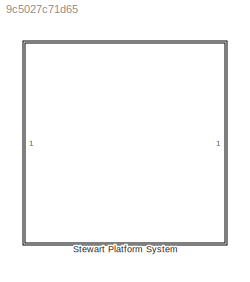
MODEL slx_9c5027c71d65
KIND model
CONFIG AbsTol = auto
CONFIG EnableMultiTasking = on
CONFIG FixedStep = auto
CONFIG MaxStep = 0.2
CONFIG MinStep = auto
CONFIG RelTol = 1e-3
CONFIG SampleTimeConstraint = Unconstrained
CONFIG Solver = ode45
CONFIG SolverName = ode45
CONFIG StartTime = 0.0
CONFIG StopTime = 40
WORKSPACE source: mxarray member
WORKSPACE g_density = 5
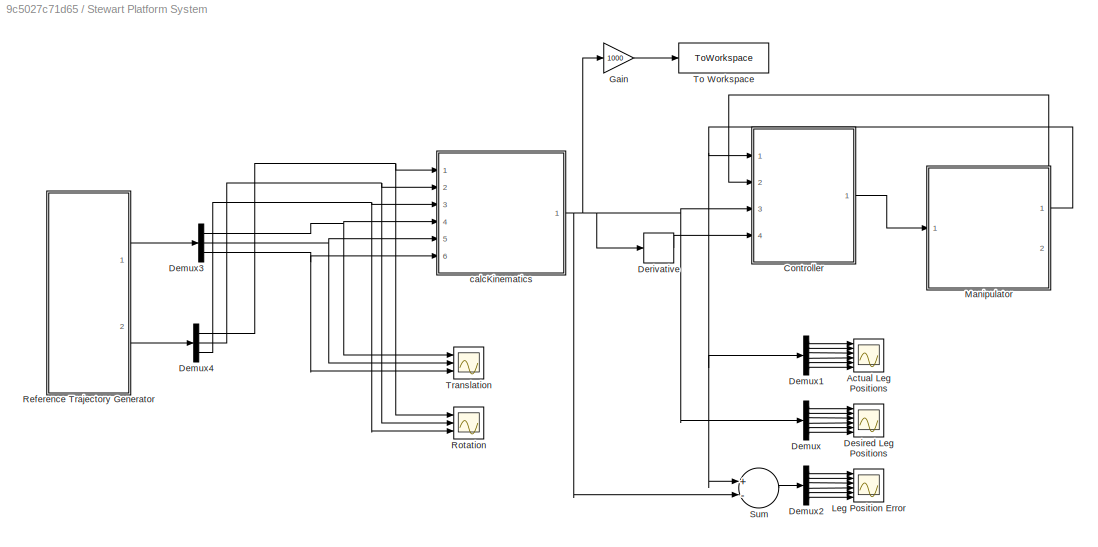
BLOCK [SubSystem] Stewart Platform System
  Ports = []
  RequestExecContextInheritance = off
BLOCK [Scope] Stewart Platform System/Actual Leg Positions
  Floating = off
  NumInputPorts = 6
  Ports = [6]
  ScopeSpecificationString = Simulink.scopes.TimeScopeBlockCfg('CurrentConfiguration', extmgr.ConfigurationSet(extmgr.Configuration('Core','General UI',true),extmgr.Configuration('Core','Source UI',true),extmgr.Configuration('Sources','WiredSimulink',true,'DataLoggingVariableName','ScopeData5','DataLoggingSaveFormat','StructureWithTime','DataLoggingLimitDataPoints',true,'DataLoggingDecimation','1','DataLoggingDecimateData',tr...<+5241ch>
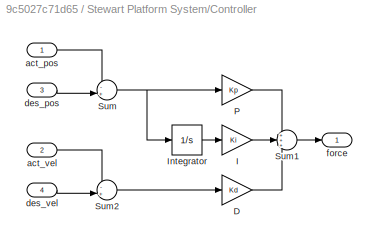
BLOCK [SubSystem] Stewart Platform System/Controller
  Ports = [4, 1]
  RequestExecContextInheritance = off
BLOCK [Gain] Stewart Platform System/Controller/D
  Gain = Kd
BLOCK [Gain] Stewart Platform System/Controller/I
  Gain = Ki
BLOCK [Integrator] Stewart Platform System/Controller/Integrator
  Ports = [1, 1]
  ZeroCross = off
BLOCK [Gain] Stewart Platform System/Controller/P
  Gain = Kp
BLOCK [Sum] Stewart Platform System/Controller/Sum
  IconShape = round
  Inputs = -+|
  Ports = [2, 1]
BLOCK [Sum] Stewart Platform System/Controller/Sum1
  IconShape = round
  Inputs = +++
  Ports = [3, 1]
BLOCK [Sum] Stewart Platform System/Controller/Sum2
  IconShape = round
  Inputs = -+|
  Ports = [2, 1]
BLOCK [Inport] Stewart Platform System/Controller/act_pos
  IconDisplay = Port number
BLOCK [Inport] Stewart Platform System/Controller/act_vel
  IconDisplay = Port number
  Port = 2
BLOCK [Inport] Stewart Platform System/Controller/des_pos
  IconDisplay = Port number
  Port = 3
BLOCK [Inport] Stewart Platform System/Controller/des_vel
  IconDisplay = Port number
  Port = 4
BLOCK [Outport] Stewart Platform System/Controller/force
  IconDisplay = Port number
  VectorParamsAs1DForOutWhenUnconnected = off
BLOCK [Demux] Stewart Platform System/Demux
  DisplayOption = bar
  Outputs = 6
  Ports = [1, 6]
BLOCK [Demux] Stewart Platform System/Demux1
  DisplayOption = bar
  Outputs = 6
  Ports = [1, 6]
BLOCK [Demux] Stewart Platform System/Demux2
  DisplayOption = bar
  Outputs = 6
  Ports = [1, 6]
BLOCK [Demux] Stewart Platform System/Demux3
  DisplayOption = bar
  Outputs = 3
  Ports = [1, 3]
BLOCK [Demux] Stewart Platform System/Demux4
  DisplayOption = bar
  Outputs = 3
  Ports = [1, 3]
BLOCK [Derivative] Stewart Platform System/Derivative
BLOCK [Scope] Stewart Platform System/Desired Leg Positions
  Floating = off
  NumInputPorts = 6
  Ports = [6]
  ScopeSpecificationString = Simulink.scopes.TimeScopeBlockCfg('CurrentConfiguration', extmgr.ConfigurationSet(extmgr.Configuration('Core','General UI',true),extmgr.Configuration('Core','Source UI',true),extmgr.Configuration('Sources','WiredSimulink',true,'DataLoggingVariableName','ScopeData4','DataLoggingSaveFormat','StructureWithTime','DataLoggingLimitDataPoints',true,'DataLoggingDecimation','1','DataLoggingDecimateData',tr...<+5195ch>
BLOCK [Gain] Stewart Platform System/Gain
  Gain = 1000
  OutDataTypeStr = Inherit: Inherit via internal rule
  ParamDataTypeStr = Inherit: Inherit via internal rule
  SaturateOnIntegerOverflow = off
BLOCK [Scope] Stewart Platform System/Leg Position Error
  Floating = off
  NumInputPorts = 6
  Ports = [6]
  ScopeSpecificationString = Simulink.scopes.TimeScopeBlockCfg('CurrentConfiguration', extmgr.ConfigurationSet(extmgr.Configuration('Core','General UI',true),extmgr.Configuration('Core','Source UI',true),extmgr.Configuration('Sources','WiredSimulink',true,'DataLoggingVariableName','ScopeData6','DataLoggingSaveFormat','StructureWithTime','DataLoggingLimitDataPoints',true,'DataLoggingDecimation','1','DataLoggingDecimateData',tr...<+5216ch>
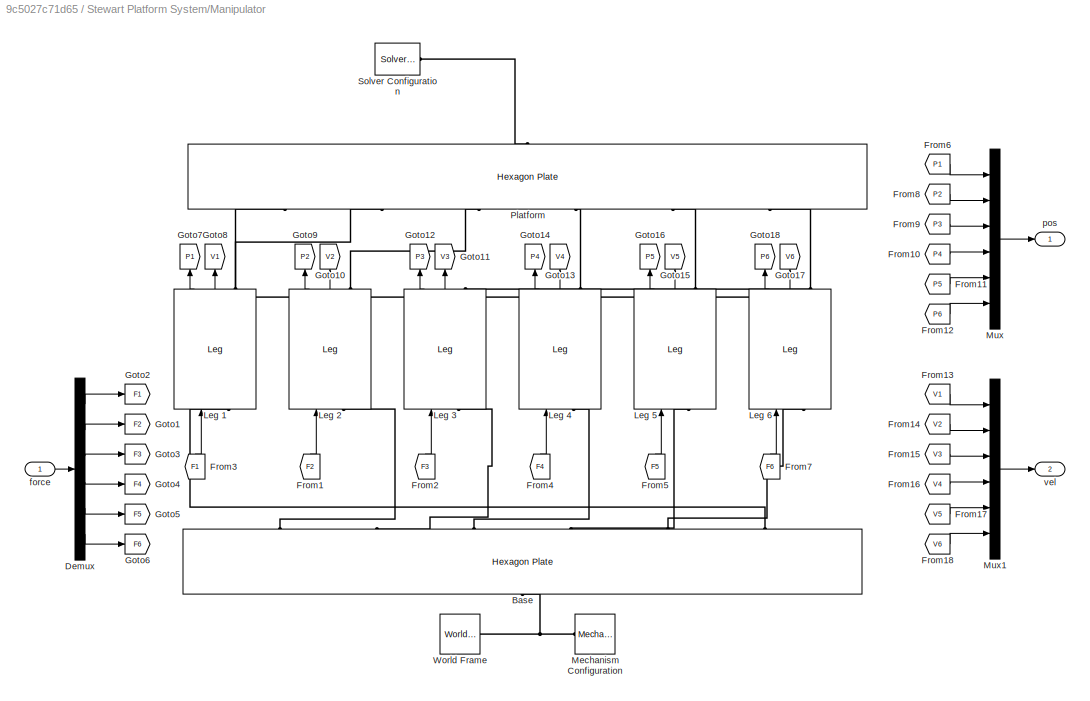
BLOCK [SubSystem] Stewart Platform System/Manipulator
  Ports = [1, 2]
  RequestExecContextInheritance = off
BLOCK [Reference] Stewart Platform System/Manipulator/Base  REF=sm_stewart_platform_lib/Hexagon
Plate
  Ports = [0, 0, 0, 0, 0, 1, 6]
  SourceBlock = sm_stewart_platform_lib/Hexagon\nPlate
  SourceProductBaseCode = MS
  SourceProductName = Simscape Multibody
  SourceType = Hexagon Plate
BLOCK [Demux] Stewart Platform System/Manipulator/Demux
  DisplayOption = bar
  Outputs = 6
  Ports = [1, 6]
BLOCK [From] Stewart Platform System/Manipulator/From1
  CloseFcn = tagdialog Close
  GotoTag = F2
BLOCK [From] Stewart Platform System/Manipulator/From10
  CloseFcn = tagdialog Close
  GotoTag = P4
BLOCK [From] Stewart Platform System/Manipulator/From11
  CloseFcn = tagdialog Close
  GotoTag = P5
BLOCK [From] Stewart Platform System/Manipulator/From12
  CloseFcn = tagdialog Close
  GotoTag = P6
BLOCK [From] Stewart Platform System/Manipulator/From13
  CloseFcn = tagdialog Close
  GotoTag = V1
BLOCK [From] Stewart Platform System/Manipulator/From14
  CloseFcn = tagdialog Close
  GotoTag = V2
BLOCK [From] Stewart Platform System/Manipulator/From15
  CloseFcn = tagdialog Close
  GotoTag = V3
BLOCK [From] Stewart Platform System/Manipulator/From16
  CloseFcn = tagdialog Close
  GotoTag = V4
BLOCK [From] Stewart Platform System/Manipulator/From17
  CloseFcn = tagdialog Close
  GotoTag = V5
BLOCK [From] Stewart Platform System/Manipulator/From18
  CloseFcn = tagdialog Close
  GotoTag = V6
BLOCK [From] Stewart Platform System/Manipulator/From2
  CloseFcn = tagdialog Close
  GotoTag = F3
BLOCK [From] Stewart Platform System/Manipulator/From3
  CloseFcn = tagdialog Close
  GotoTag = F1
BLOCK [From] Stewart Platform System/Manipulator/From4
  CloseFcn = tagdialog Close
  GotoTag = F4
BLOCK [From] Stewart Platform System/Manipulator/From5
  CloseFcn = tagdialog Close
  GotoTag = F5
BLOCK [From] Stewart Platform System/Manipulator/From6
  CloseFcn = tagdialog Close
  GotoTag = P1
BLOCK [From] Stewart Platform System/Manipulator/From7
  CloseFcn = tagdialog Close
  GotoTag = F6
BLOCK [From] Stewart Platform System/Manipulator/From8
  CloseFcn = tagdialog Close
  GotoTag = P2
BLOCK [From] Stewart Platform System/Manipulator/From9
  CloseFcn = tagdialog Close
  GotoTag = P3
BLOCK [Goto] Stewart Platform System/Manipulator/Goto1
  GotoTag = F2
BLOCK [Goto] Stewart Platform System/Manipulator/Goto10
  GotoTag = V2
BLOCK [Goto] Stewart Platform System/Manipulator/Goto11
  GotoTag = V3
BLOCK [Goto] Stewart Platform System/Manipulator/Goto12
  GotoTag = P3
BLOCK [Goto] Stewart Platform System/Manipulator/Goto13
  GotoTag = V4
BLOCK [Goto] Stewart Platform System/Manipulator/Goto14
  GotoTag = P4
BLOCK [Goto] Stewart Platform System/Manipulator/Goto15
  GotoTag = V5
BLOCK [Goto] Stewart Platform System/Manipulator/Goto16
  GotoTag = P5
BLOCK [Goto] Stewart Platform System/Manipulator/Goto17
  GotoTag = V6
BLOCK [Goto] Stewart Platform System/Manipulator/Goto18
  GotoTag = P6
BLOCK [Goto] Stewart Platform System/Manipulator/Goto2
  GotoTag = F1
BLOCK [Goto] Stewart Platform System/Manipulator/Goto3
  GotoTag = F3
BLOCK [Goto] Stewart Platform System/Manipulator/Goto4
  GotoTag = F4
BLOCK [Goto] Stewart Platform System/Manipulator/Goto5
  GotoTag = F5
BLOCK [Goto] Stewart Platform System/Manipulator/Goto6
  GotoTag = F6
BLOCK [Goto] Stewart Platform System/Manipulator/Goto7
  GotoTag = P1
BLOCK [Goto] Stewart Platform System/Manipulator/Goto8
  GotoTag = V1
BLOCK [Goto] Stewart Platform System/Manipulator/Goto9
  GotoTag = P2
BLOCK [Reference] Stewart Platform System/Manipulator/Leg 1  REF=sm_stewart_platform_lib/Leg
  Ports = [1, 2, 0, 0, 0, 1, 1]
  SourceBlock = sm_stewart_platform_lib/Leg
  SourceProductBaseCode = MS
  SourceProductName = Simscape Multibody
  SourceType = Leg
BLOCK [Reference] Stewart Platform System/Manipulator/Leg 2  REF=sm_stewart_platform_lib/Leg
  Ports = [1, 2, 0, 0, 0, 1, 1]
  SourceBlock = sm_stewart_platform_lib/Leg
  SourceProductBaseCode = MS
  SourceProductName = Simscape Multibody
  SourceType = Leg
BLOCK [Reference] Stewart Platform System/Manipulator/Leg 3  REF=sm_stewart_platform_lib/Leg
  Ports = [1, 2, 0, 0, 0, 1, 1]
  SourceBlock = sm_stewart_platform_lib/Leg
  SourceProductBaseCode = MS
  SourceProductName = Simscape Multibody
  SourceType = Leg
BLOCK [Reference] Stewart Platform System/Manipulator/Leg 4  REF=sm_stewart_platform_lib/Leg
  Ports = [1, 2, 0, 0, 0, 1, 1]
  SourceBlock = sm_stewart_platform_lib/Leg
  SourceProductBaseCode = MS
  SourceProductName = Simscape Multibody
  SourceType = Leg
BLOCK [Reference] Stewart Platform System/Manipulator/Leg 5  REF=sm_stewart_platform_lib/Leg
  Ports = [1, 2, 0, 0, 0, 1, 1]
  SourceBlock = sm_stewart_platform_lib/Leg
  SourceProductBaseCode = MS
  SourceProductName = Simscape Multibody
  SourceType = Leg
BLOCK [Reference] Stewart Platform System/Manipulator/Leg 6  REF=sm_stewart_platform_lib/Leg
  Ports = [1, 2, 0, 0, 0, 1, 1]
  SourceBlock = sm_stewart_platform_lib/Leg
  SourceProductBaseCode = MS
  SourceProductName = Simscape Multibody
  SourceType = Leg
BLOCK [Reference] Stewart Platform System/Manipulator/Mechanism Configuration  REF=sm_lib/Utilities/Mechanism
Configuration
  Ports = [0, 0, 0, 0, 0, 0, 1]
  SourceBlock = sm_lib/Utilities/Mechanism\nConfiguration
  SourceProductBaseCode = MS
  SourceProductName = Simscape Multibody
  SourceType = Mechanism\nConfiguration
BLOCK [Mux] Stewart Platform System/Manipulator/Mux
  DisplayOption = bar
  Inputs = 6
  Ports = [6, 1]
BLOCK [Mux] Stewart Platform System/Manipulator/Mux1
  DisplayOption = bar
  Inputs = 6
  Ports = [6, 1]
BLOCK [Reference] Stewart Platform System/Manipulator/Platform  REF=sm_stewart_platform_lib/Hexagon
Plate
  Ports = [0, 0, 0, 0, 0, 1, 6]
  SourceBlock = sm_stewart_platform_lib/Hexagon\nPlate
  SourceProductBaseCode = MS
  SourceProductName = Simscape Multibody
  SourceType = Hexagon Plate
BLOCK [Reference] Stewart Platform System/Manipulator/Solver Configuration  REF=nesl_utility/Solver
Configuration
  Ports = [0, 0, 0, 0, 0, 0, 1]
  SourceBlock = nesl_utility/Solver\nConfiguration
  SourceProductBaseCode = SS
  SourceProductName = Simscape
  SourceType = Solver\nConfiguration
BLOCK [Reference] Stewart Platform System/Manipulator/World Frame  REF=sm_lib/Frames and
Transforms/World Frame
  Ports = [0, 0, 0, 0, 0, 0, 1]
  SourceBlock = sm_lib/Frames and\nTransforms/World Frame
  SourceProductBaseCode = MS
  SourceProductName = Simscape Multibody
  SourceType = World Frame
BLOCK [Inport] Stewart Platform System/Manipulator/force
  IconDisplay = Port number
BLOCK [Outport] Stewart Platform System/Manipulator/pos
  IconDisplay = Port number
  VectorParamsAs1DForOutWhenUnconnected = off
BLOCK [Outport] Stewart Platform System/Manipulator/vel
  IconDisplay = Port number
  Port = 2
  VectorParamsAs1DForOutWhenUnconnected = off
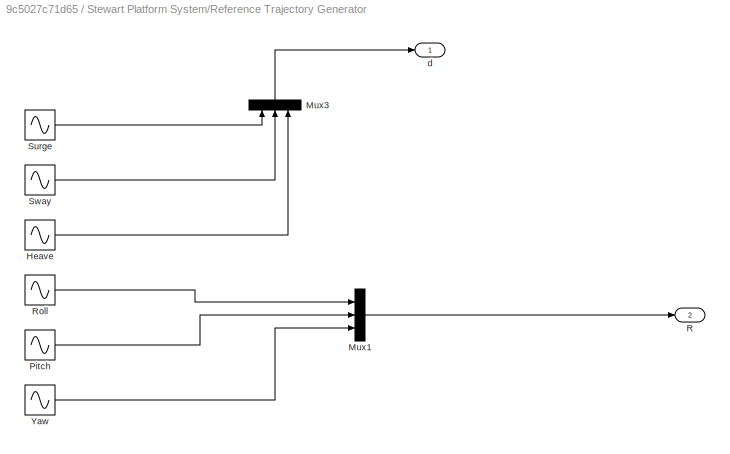
BLOCK [SubSystem] Stewart Platform System/Reference Trajectory Generator
  Ports = [0, 2]
  RequestExecContextInheritance = off
BLOCK [Sin] Stewart Platform System/Reference Trajectory Generator/Heave
  Amplitude = 0
  Frequency = pi/10
  Ports = [0, 1]
  SampleTime = 0.1
BLOCK [Mux] Stewart Platform System/Reference Trajectory Generator/Mux1
  DisplayOption = bar
  Inputs = 3
  Ports = [3, 1]
BLOCK [Mux] Stewart Platform System/Reference Trajectory Generator/Mux3
  DisplayOption = bar
  Inputs = 3
  Ports = [3, 1]
BLOCK [Sin] Stewart Platform System/Reference Trajectory Generator/Pitch
  Amplitude = pi/180*2
  Frequency = pi * 3 / 10
  Phase = -pi/2
  Ports = [0, 1]
  SampleTime = 0.01
BLOCK [Outport] Stewart Platform System/Reference Trajectory Generator/R
  IconDisplay = Port number
  Port = 2
  VectorParamsAs1DForOutWhenUnconnected = off
BLOCK [Sin] Stewart Platform System/Reference Trajectory Generator/Roll
  Amplitude = pi/180*2
  Frequency = pi * 3 / 10
  Ports = [0, 1]
  SampleTime = 0.01
BLOCK [Sin] Stewart Platform System/Reference Trajectory Generator/Surge
  Amplitude = 0
  Frequency = pi/10
  Ports = [0, 1]
  SampleTime = 0.1
BLOCK [Sin] Stewart Platform System/Reference Trajectory Generator/Sway
  Amplitude = 0
  Frequency = pi/10
  Phase = -pi/2
  Ports = [0, 1]
  SampleTime = 0.1
BLOCK [Sin] Stewart Platform System/Reference Trajectory Generator/Yaw
  Amplitude = (pi/180)*2
  Frequency = pi * 3 / 10
  Ports = [0, 1]
  SampleTime = 0.01
BLOCK [Outport] Stewart Platform System/Reference Trajectory Generator/d
  IconDisplay = Port number
  VectorParamsAs1DForOutWhenUnconnected = off
BLOCK [Scope] Stewart Platform System/Rotation
  Floating = off
  NumInputPorts = 3
  Ports = [3]
  ScopeSpecificationString = Simulink.scopes.TimeScopeBlockCfg('CurrentConfiguration', extmgr.ConfigurationSet(extmgr.Configuration('Core','General UI',true),extmgr.Configuration('Core','Source UI',true),extmgr.Configuration('Sources','WiredSimulink',true,'DataLoggingVariableName','ScopeData2'),extmgr.Configuration('Visuals','Time Domain',true,'SerializedDisplays',{struct('MinYLimReal','-0.04363','MaxYLimReal','0.04363','YLab...<+2808ch>
BLOCK [Sum] Stewart Platform System/Sum
  InputSameDT = off
  Inputs = +-
  OutDataTypeStr = Inherit: Inherit via internal rule
  Ports = [2, 1]
  SaturateOnIntegerOverflow = off
BLOCK [ToWorkspace] Stewart Platform System/To Workspace
  FixptAsFi = on
  MaxDataPoints = inf
  Ports = [1]
  SampleTime = -1
  SaveFormat = Timeseries
  VariableName = out
BLOCK [Scope] Stewart Platform System/Translation
  Floating = off
  NumInputPorts = 3
  Ports = [3]
  ScopeSpecificationString = Simulink.scopes.TimeScopeBlockCfg('CurrentConfiguration', extmgr.ConfigurationSet(extmgr.Configuration('Core','General UI',true),extmgr.Configuration('Core','Source UI',true),extmgr.Configuration('Sources','WiredSimulink',true,'DataLoggingVariableName','ScopeData1'),extmgr.Configuration('Visuals','Time Domain',true,'SerializedDisplays',{struct('MinYLimReal','-1.00000','MaxYLimReal','1.00000','YLab...<+2817ch>
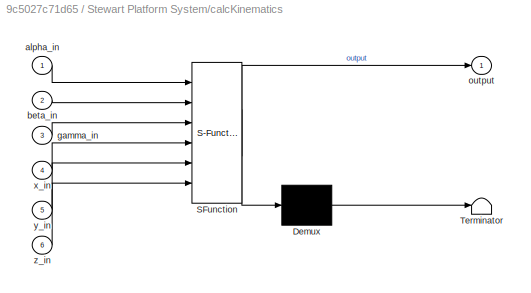
BLOCK [SubSystem] Stewart Platform System/calcKinematics
  ErrorFcn = Stateflow.Translate.translate
  PermitHierarchicalResolution = ExplicitOnly
  Ports = [6, 1]
  RequestExecContextInheritance = off
  SFBlockType = MATLAB Function
  TreatAsAtomicUnit = on
BLOCK [Demux] Stewart Platform System/calcKinematics/ Demux 
  Outputs = 1
  Ports = [1, 1]
BLOCK [S-Function] Stewart Platform System/calcKinematics/ SFunction 
  EnableBusSupport = on
  FunctionName = sf_sfun
  PortCounts = [6 2]
  Ports = [6, 2]
  SFcnIsStateOwnerBlock = off
  SFunctionDeploymentMode = off
  Tag = Stateflow S-Function 2
BLOCK [Terminator] Stewart Platform System/calcKinematics/ Terminator 
BLOCK [Inport] Stewart Platform System/calcKinematics/alpha_in
  IconDisplay = Port number
BLOCK [Inport] Stewart Platform System/calcKinematics/beta_in
  IconDisplay = Port number
  Port = 2
BLOCK [Inport] Stewart Platform System/calcKinematics/gamma_in
  IconDisplay = Port number
  Port = 3
BLOCK [Outport] Stewart Platform System/calcKinematics/output
  IconDisplay = Port number
BLOCK [Inport] Stewart Platform System/calcKinematics/x_in
  IconDisplay = Port number
  Port = 4
BLOCK [Inport] Stewart Platform System/calcKinematics/y_in
  IconDisplay = Port number
  Port = 5
BLOCK [Inport] Stewart Platform System/calcKinematics/z_in
  IconDisplay = Port number
  Port = 6
LINE Stewart Platform System/Controller/D:1 -> Stewart Platform System/Controller/Sum1:3
LINE Stewart Platform System/Controller/I:1 -> Stewart Platform System/Controller/Sum1:2
LINE Stewart Platform System/Controller/Integrator:1 -> Stewart Platform System/Controller/I:1
LINE Stewart Platform System/Controller/P:1 -> Stewart Platform System/Controller/Sum1:1
LINE Stewart Platform System/Controller/Sum1:1 -> Stewart Platform System/Controller/force:1
LINE Stewart Platform System/Controller/Sum2:1 -> Stewart Platform System/Controller/D:1
NET Stewart Platform System/Controller/Sum:1 -> Stewart Platform System/Controller/Integrator:1, Stewart Platform System/Controller/P:1
LINE Stewart Platform System/Controller/act_pos:1 -> Stewart Platform System/Controller/Sum:1
LINE Stewart Platform System/Controller/act_vel:1 -> Stewart Platform System/Controller/Sum2:1
LINE Stewart Platform System/Controller/des_pos:1 -> Stewart Platform System/Controller/Sum:2
LINE Stewart Platform System/Controller/des_vel:1 -> Stewart Platform System/Controller/Sum2:2
LINE Stewart Platform System/Controller:1 -> Stewart Platform System/Manipulator:1
LINE Stewart Platform System/Demux1:1 -> Stewart Platform System/Actual Leg Positions:1
LINE Stewart Platform System/Demux1:2 -> Stewart Platform System/Actual Leg Positions:2
LINE Stewart Platform System/Demux1:3 -> Stewart Platform System/Actual Leg Positions:3
LINE Stewart Platform System/Demux1:4 -> Stewart Platform System/Actual Leg Positions:4
LINE Stewart Platform System/Demux1:5 -> Stewart Platform System/Actual Leg Positions:5
LINE Stewart Platform System/Demux1:6 -> Stewart Platform System/Actual Leg Positions:6
LINE Stewart Platform System/Demux2:1 -> Stewart Platform System/Leg Position Error:1
LINE Stewart Platform System/Demux2:2 -> Stewart Platform System/Leg Position Error:2
LINE Stewart Platform System/Demux2:3 -> Stewart Platform System/Leg Position Error:3
LINE Stewart Platform System/Demux2:4 -> Stewart Platform System/Leg Position Error:4
LINE Stewart Platform System/Demux2:5 -> Stewart Platform System/Leg Position Error:5
LINE Stewart Platform System/Demux2:6 -> Stewart Platform System/Leg Position Error:6
NET Stewart Platform System/Demux3:1 -> Stewart Platform System/Translation:1, Stewart Platform System/calcKinematics:4
NET Stewart Platform System/Demux3:2 -> Stewart Platform System/Translation:2, Stewart Platform System/calcKinematics:5
NET Stewart Platform System/Demux3:3 -> Stewart Platform System/Translation:3, Stewart Platform System/calcKinematics:6
NET Stewart Platform System/Demux4:1 -> Stewart Platform System/Rotation:1, Stewart Platform System/calcKinematics:1
NET Stewart Platform System/Demux4:2 -> Stewart Platform System/Rotation:2, Stewart Platform System/calcKinematics:2
NET Stewart Platform System/Demux4:3 -> Stewart Platform System/Rotation:3, Stewart Platform System/calcKinematics:3
LINE Stewart Platform System/Demux:1 -> Stewart Platform System/Desired Leg Positions:1
LINE Stewart Platform System/Demux:2 -> Stewart Platform System/Desired Leg Positions:2
LINE Stewart Platform System/Demux:3 -> Stewart Platform System/Desired Leg Positions:3
LINE Stewart Platform System/Demux:4 -> Stewart Platform System/Desired Leg Positions:4
LINE Stewart Platform System/Demux:5 -> Stewart Platform System/Desired Leg Positions:5
LINE Stewart Platform System/Demux:6 -> Stewart Platform System/Desired Leg Positions:6
LINE Stewart Platform System/Derivative:1 -> Stewart Platform System/Controller:4
LINE Stewart Platform System/Gain:1 -> Stewart Platform System/To Workspace:1
LINE Stewart Platform System/Manipulator/Demux:1 -> Stewart Platform System/Manipulator/Goto2:1
LINE Stewart Platform System/Manipulator/Demux:2 -> Stewart Platform System/Manipulator/Goto1:1
LINE Stewart Platform System/Manipulator/Demux:3 -> Stewart Platform System/Manipulator/Goto3:1
LINE Stewart Platform System/Manipulator/Demux:4 -> Stewart Platform System/Manipulator/Goto4:1
LINE Stewart Platform System/Manipulator/Demux:5 -> Stewart Platform System/Manipulator/Goto5:1
LINE Stewart Platform System/Manipulator/Demux:6 -> Stewart Platform System/Manipulator/Goto6:1
LINE Stewart Platform System/Manipulator/From10:1 -> Stewart Platform System/Manipulator/Mux:4
LINE Stewart Platform System/Manipulator/From11:1 -> Stewart Platform System/Manipulator/Mux:5
LINE Stewart Platform System/Manipulator/From12:1 -> Stewart Platform System/Manipulator/Mux:6
LINE Stewart Platform System/Manipulator/From13:1 -> Stewart Platform System/Manipulator/Mux1:1
LINE Stewart Platform System/Manipulator/From14:1 -> Stewart Platform System/Manipulator/Mux1:2
LINE Stewart Platform System/Manipulator/From15:1 -> Stewart Platform System/Manipulator/Mux1:3
LINE Stewart Platform System/Manipulator/From16:1 -> Stewart Platform System/Manipulator/Mux1:4
LINE Stewart Platform System/Manipulator/From17:1 -> Stewart Platform System/Manipulator/Mux1:5
LINE Stewart Platform System/Manipulator/From18:1 -> Stewart Platform System/Manipulator/Mux1:6
LINE Stewart Platform System/Manipulator/From1:1 -> Stewart Platform System/Manipulator/Leg 2:1
LINE Stewart Platform System/Manipulator/From2:1 -> Stewart Platform System/Manipulator/Leg 3:1
LINE Stewart Platform System/Manipulator/From3:1 -> Stewart Platform System/Manipulator/Leg 1:1
LINE Stewart Platform System/Manipulator/From4:1 -> Stewart Platform System/Manipulator/Leg 4:1
LINE Stewart Platform System/Manipulator/From5:1 -> Stewart Platform System/Manipulator/Leg 5:1
LINE Stewart Platform System/Manipulator/From6:1 -> Stewart Platform System/Manipulator/Mux:1
LINE Stewart Platform System/Manipulator/From7:1 -> Stewart Platform System/Manipulator/Leg 6:1
LINE Stewart Platform System/Manipulator/From8:1 -> Stewart Platform System/Manipulator/Mux:2
LINE Stewart Platform System/Manipulator/From9:1 -> Stewart Platform System/Manipulator/Mux:3
LINE Stewart Platform System/Manipulator/Leg 1:1 -> Stewart Platform System/Manipulator/Goto7:1
LINE Stewart Platform System/Manipulator/Leg 1:2 -> Stewart Platform System/Manipulator/Goto8:1
LINE Stewart Platform System/Manipulator/Leg 2:1 -> Stewart Platform System/Manipulator/Goto9:1
LINE Stewart Platform System/Manipulator/Leg 2:2 -> Stewart Platform System/Manipulator/Goto10:1
LINE Stewart Platform System/Manipulator/Leg 3:1 -> Stewart Platform System/Manipulator/Goto12:1
LINE Stewart Platform System/Manipulator/Leg 3:2 -> Stewart Platform System/Manipulator/Goto11:1
LINE Stewart Platform System/Manipulator/Leg 4:1 -> Stewart Platform System/Manipulator/Goto14:1
LINE Stewart Platform System/Manipulator/Leg 4:2 -> Stewart Platform System/Manipulator/Goto13:1
LINE Stewart Platform System/Manipulator/Leg 5:1 -> Stewart Platform System/Manipulator/Goto16:1
LINE Stewart Platform System/Manipulator/Leg 5:2 -> Stewart Platform System/Manipulator/Goto15:1
LINE Stewart Platform System/Manipulator/Leg 6:1 -> Stewart Platform System/Manipulator/Goto18:1
LINE Stewart Platform System/Manipulator/Leg 6:2 -> Stewart Platform System/Manipulator/Goto17:1
LINE Stewart Platform System/Manipulator/Mux1:1 -> Stewart Platform System/Manipulator/vel:1
LINE Stewart Platform System/Manipulator/Mux:1 -> Stewart Platform System/Manipulator/pos:1
LINE Stewart Platform System/Manipulator/force:1 -> Stewart Platform System/Manipulator/Demux:1
NET Stewart Platform System/Manipulator:1 -> Stewart Platform System/Controller:1, Stewart Platform System/Demux1:1, Stewart Platform System/Sum:1
LINE Stewart Platform System/Manipulator:2 -> Stewart Platform System/Controller:2
LINE Stewart Platform System/Reference Trajectory Generator/Heave:1 -> Stewart Platform System/Reference Trajectory Generator/Mux3:3
LINE Stewart Platform System/Reference Trajectory Generator/Mux1:1 -> Stewart Platform System/Reference Trajectory Generator/R:1
LINE Stewart Platform System/Reference Trajectory Generator/Mux3:1 -> Stewart Platform System/Reference Trajectory Generator/d:1
LINE Stewart Platform System/Reference Trajectory Generator/Pitch:1 -> Stewart Platform System/Reference Trajectory Generator/Mux1:2
LINE Stewart Platform System/Reference Trajectory Generator/Roll:1 -> Stewart Platform System/Reference Trajectory Generator/Mux1:1
LINE Stewart Platform System/Reference Trajectory Generator/Surge:1 -> Stewart Platform System/Reference Trajectory Generator/Mux3:1
LINE Stewart Platform System/Reference Trajectory Generator/Sway:1 -> Stewart Platform System/Reference Trajectory Generator/Mux3:2
LINE Stewart Platform System/Reference Trajectory Generator/Yaw:1 -> Stewart Platform System/Reference Trajectory Generator/Mux1:3
LINE Stewart Platform System/Reference Trajectory Generator:1 -> Stewart Platform System/Demux3:1
LINE Stewart Platform System/Reference Trajectory Generator:2 -> Stewart Platform System/Demux4:1
LINE Stewart Platform System/Sum:1 -> Stewart Platform System/Demux2:1
NET Stewart Platform System/calcKinematics:1 -> Stewart Platform System/Controller:3, Stewart Platform System/Demux:1, Stewart Platform System/Derivative:1, Stewart Platform System/Gain:1, Stewart Platform System/Sum:2
PNET net1: Stewart Platform System/Manipulator/Base:LConn1 -- Stewart Platform System/Manipulator/Mechanism Configuration:RConn1 -- Stewart Platform System/Manipulator/World Frame:RConn1
PLINE Stewart Platform System/Manipulator/Base:RConn1 -- Stewart Platform System/Manipulator/Leg 2:LConn1
PLINE Stewart Platform System/Manipulator/Base:RConn2 -- Stewart Platform System/Manipulator/Leg 3:LConn1
PLINE Stewart Platform System/Manipulator/Base:RConn3 -- Stewart Platform System/Manipulator/Leg 4:LConn1
PLINE Stewart Platform System/Manipulator/Base:RConn4 -- Stewart Platform System/Manipulator/Leg 5:LConn1
PLINE Stewart Platform System/Manipulator/Base:RConn5 -- Stewart Platform System/Manipulator/Leg 6:LConn1
PLINE Stewart Platform System/Manipulator/Base:RConn6 -- Stewart Platform System/Manipulator/Leg 1:LConn1
PLINE Stewart Platform System/Manipulator/Leg 1:RConn1 -- Stewart Platform System/Manipulator/Platform:RConn2
PLINE Stewart Platform System/Manipulator/Leg 2:RConn1 -- Stewart Platform System/Manipulator/Platform:RConn3
PLINE Stewart Platform System/Manipulator/Leg 3:RConn1 -- Stewart Platform System/Manipulator/Platform:RConn4
PLINE Stewart Platform System/Manipulator/Leg 4:RConn1 -- Stewart Platform System/Manipulator/Platform:RConn5
PLINE Stewart Platform System/Manipulator/Leg 5:RConn1 -- Stewart Platform System/Manipulator/Platform:RConn6
PLINE Stewart Platform System/Manipulator/Leg 6:RConn1 -- Stewart Platform System/Manipulator/Platform:RConn1
PLINE Stewart Platform System/Manipulator/Platform:LConn1 -- Stewart Platform System/Manipulator/Solver Configuration:RConn1
note: NET lines group one-source signal fan-out (src -> all destinations, sorted); 1:1 wires keep LINE; PNET lines group multi-terminal physical nets as a canonical sorted terminal list (undirected conserving connections); 2-terminal nets keep the pairwise PLINE form
CHART Stewart Platform System/calcKinematics states=1 transitions=1
  STATE_LABEL 'eML_blk_kernel()'
  STATE_LABEL 'SCRIPT:\nfunction output  = calcKinematics(alpha_in, beta_in,gamma_in, x_in, y_in, z_in)\n\n%Defining Roll Pitch Yaw angles\nalpha = alpha_in;\nbeta = beta_in;\ngamma = gamma_in;\n\n%Defining rotation matrices in xyz\nr_x = [1 0 0;\n       0 cos(alpha) -sin(alpha);\n       0 sin(alpha) cos(alpha)];\n\nr_y = [cos(beta) 0 sin(beta);\n       0 1 0;\n       -sin(beta) 0 cos(beta)];\n\nr_z = [cos(gamma) -sin(gamma) 0;\n...<+1769ch>'
